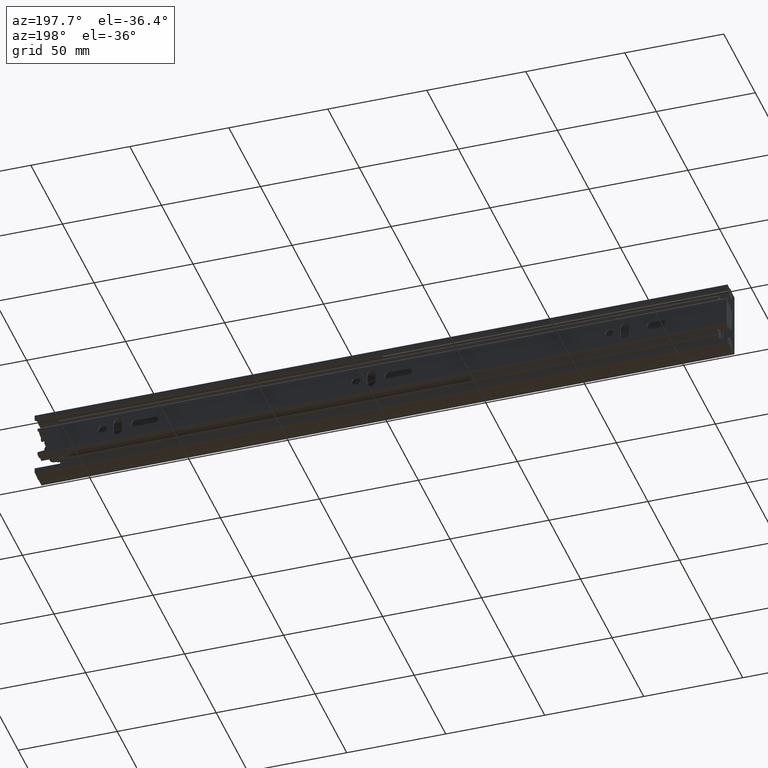
[diagram: clean part render]
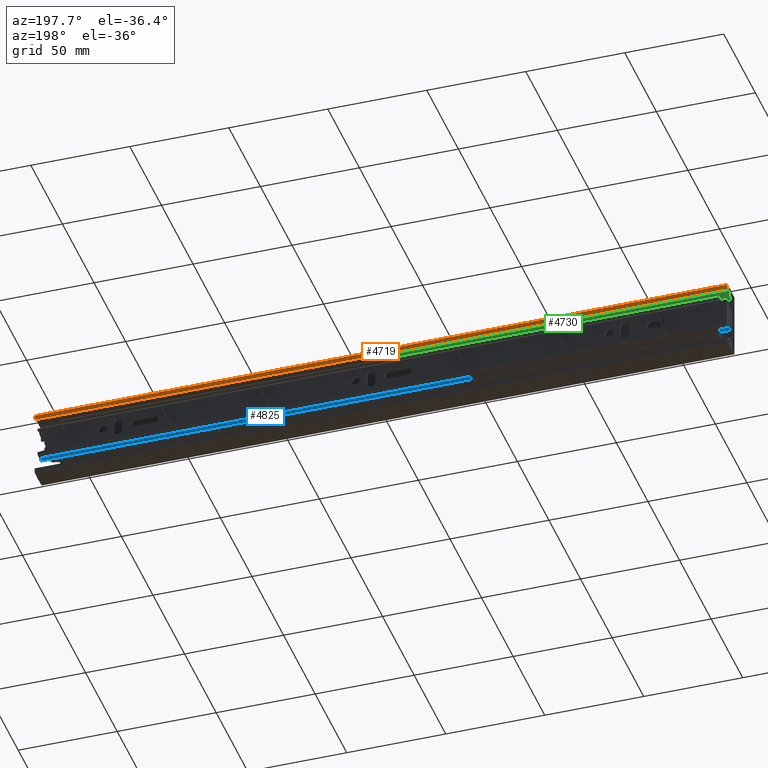
[diagram: same view with three faces highlighted in distinct colors, each labeled with its STEP entity id]
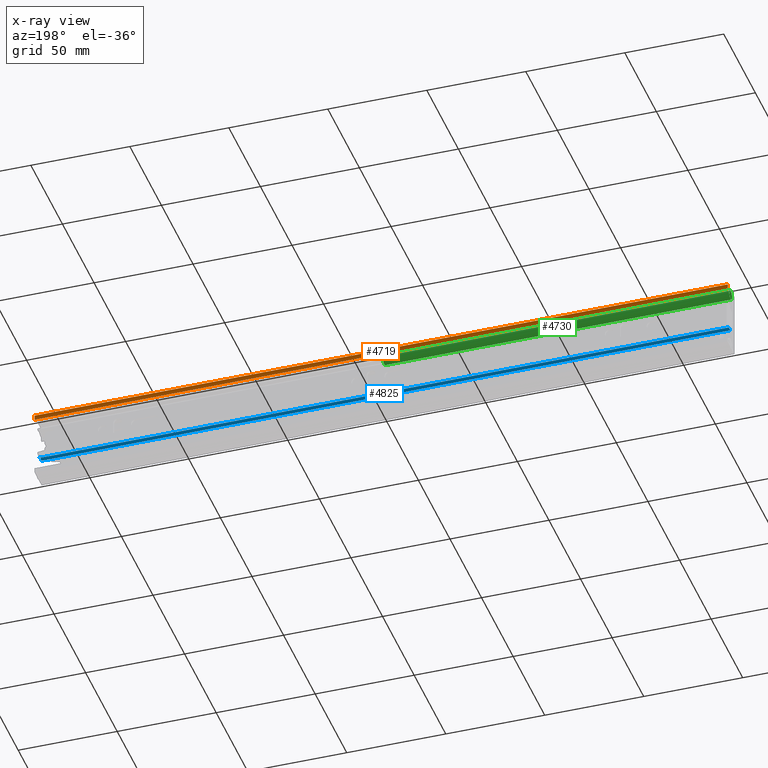
[diagram: x-ray of the same camera — body ghosted, the three highlighted faces saturated]
A machine part, auxiliary view with three faces highlighted in distinct colors.
The next image is the same camera in x-ray (body ghosted, the three faces saturated) — at least one of them is partly hidden behind the body in this view.
Their STEP definitions:

[orange] entity #4719 — the highlighted planar face has unit normal (0, 1, 0).
#318=FACE_OUTER_BOUND('',#597,.T.);
#597=EDGE_LOOP('',(#3710,#3711,#3712,#3713));
#896=LINE('',#7111,#1394);
#991=LINE('',#7316,#1489);
#998=LINE('',#7331,#1496);
#999=LINE('',#7333,#1497);
#1394=VECTOR('',#5640,2.5);
#1489=VECTOR('',#5911,2.5);
#1496=VECTOR('',#5926,350.);
#1497=VECTOR('',#5929,350.);
#2140=VERTEX_POINT('',#7108);
#2141=VERTEX_POINT('',#7110);
#2162=VERTEX_POINT('',#7313);
#2163=VERTEX_POINT('',#7315);
#2621=EDGE_CURVE('',#2140,#2141,#896,.T.);
#2722=EDGE_CURVE('',#2162,#2163,#991,.T.);
#2730=EDGE_CURVE('',#2162,#2141,#998,.T.);
#2731=EDGE_CURVE('',#2163,#2140,#999,.T.);
#3710=ORIENTED_EDGE('',*,*,#2730,.T.);
#3711=ORIENTED_EDGE('',*,*,#2621,.F.);
#3712=ORIENTED_EDGE('',*,*,#2731,.F.);
#3713=ORIENTED_EDGE('',*,*,#2722,.F.);
#4525=PLANE('',#5058);
#4719=ADVANCED_FACE('',(#318),#4525,.T.);
#5058=AXIS2_PLACEMENT_3D('',#7332,#5927,#5928);
#5640=DIRECTION('',(0.,-8.88178419700125E-16,1.));
#5911=DIRECTION('',(0.,8.88178419700125E-16,-1.));
#5926=DIRECTION('',(1.,0.,0.));
#5927=DIRECTION('center_axis',(0.,1.,8.88178419700125E-16));
#5928=DIRECTION('ref_axis',(0.,-8.88178419700125E-16,1.));
#5929=DIRECTION('',(1.,0.,0.));
#7108=CARTESIAN_POINT('',(175.,11.,14.5));
#7110=CARTESIAN_POINT('',(175.,11.,17.));
#7111=CARTESIAN_POINT('',(175.,11.,14.5));
#7313=CARTESIAN_POINT('',(-175.,11.,17.));
#7315=CARTESIAN_POINT('',(-175.,11.,14.5));
#7316=CARTESIAN_POINT('',(-175.,11.,14.5));
#7331=CARTESIAN_POINT('',(0.,11.,17.));
#7332=CARTESIAN_POINT('Origin',(0.,11.,14.5));
#7333=CARTESIAN_POINT('',(0.,11.,14.5));

[blue] entity #4825 — the highlighted cylindrical surface (edge-blend (fillet) strip) has radius 2.25 mm, axis along (1, 0, 0).
#139=CYLINDRICAL_SURFACE('',#5257,2.25);
#424=FACE_OUTER_BOUND('',#734,.T.);
#734=EDGE_LOOP('',(#4294,#4295,#4296,#4297));
#1124=LINE('',#7710,#1622);
#1197=LINE('',#7924,#1695);
#1622=VECTOR('',#6306,348.);
#1695=VECTOR('',#6525,348.);
#1890=CIRCLE('',#5159,2.25);
#1922=CIRCLE('',#5205,2.25);
#2261=VERTEX_POINT('',#7625);
#2262=VERTEX_POINT('',#7627);
#2293=VERTEX_POINT('',#7708);
#2328=VERTEX_POINT('',#7789);
#2871=EDGE_CURVE('',#2261,#2262,#1890,.T.);
#2913=EDGE_CURVE('',#2293,#2261,#1124,.T.);
#2954=EDGE_CURVE('',#2328,#2293,#1922,.T.);
#3019=EDGE_CURVE('',#2262,#2328,#1197,.T.);
#4294=ORIENTED_EDGE('',*,*,#2913,.F.);
#4295=ORIENTED_EDGE('',*,*,#2954,.F.);
#4296=ORIENTED_EDGE('',*,*,#3019,.F.);
#4297=ORIENTED_EDGE('',*,*,#2871,.F.);
#4825=ADVANCED_FACE('',(#424),#139,.F.);
#5159=AXIS2_PLACEMENT_3D('',#7628,#6229,#6230);
#5205=AXIS2_PLACEMENT_3D('',#7791,#6372,#6373);
#5257=AXIS2_PLACEMENT_3D('',#7923,#6523,#6524);
#6229=DIRECTION('center_axis',(1.,0.,0.));
#6230=DIRECTION('ref_axis',(0.,-0.831479419283122,-0.55555555555552));
#6306=DIRECTION('',(-1.,0.,0.));
#6372=DIRECTION('center_axis',(-1.,0.,0.));
#6373=DIRECTION('ref_axis',(0.,-0.831479419283122,-0.55555555555552));
#6523=DIRECTION('center_axis',(1.,0.,0.));
#6524=DIRECTION('ref_axis',(0.,-0.831479419283122,-0.55555555555552));
#6525=DIRECTION('',(1.,0.,0.));
#7625=CARTESIAN_POINT('',(-174.,9.72360545532353,-7.84230769230773));
#7627=CARTESIAN_POINT('',(-174.,6.8,-7.5635632327793));
#7628=CARTESIAN_POINT('Origin',(-174.,8.09999999999999,-9.4));
#7708=CARTESIAN_POINT('',(174.,9.72360545532353,-7.84230769230773));
#7710=CARTESIAN_POINT('',(0.,9.72360545532353,-7.84230769230773));
#7789=CARTESIAN_POINT('',(174.,6.8,-7.5635632327793));
#7791=CARTESIAN_POINT('Origin',(174.,8.09999999999999,-9.4));
#7923=CARTESIAN_POINT('Origin',(0.,8.09999999999999,-9.4));
#7924=CARTESIAN_POINT('',(0.,6.8,-7.5635632327793));

[green] entity #4730 — the highlighted cylindrical surface (bore or boss wall) has radius 2.25 mm, axis along (1, 0, 0).
#98=CYLINDRICAL_SURFACE('',#5073,2.25);
#182=FACE_BOUND('',#610,.T.);
#329=FACE_OUTER_BOUND('',#609,.T.);
#609=EDGE_LOOP('',(#3751));
#610=EDGE_LOOP('',(#3752));
#1852=CIRCLE('',#5072,2.25);
#1853=CIRCLE('',#5074,2.25);
#2170=VERTEX_POINT('',#7353);
#2171=VERTEX_POINT('',#7356);
#2738=EDGE_CURVE('',#2170,#2170,#1852,.T.);
#2739=EDGE_CURVE('',#2171,#2171,#1853,.T.);
#3751=ORIENTED_EDGE('',*,*,#2738,.F.);
#3752=ORIENTED_EDGE('',*,*,#2739,.F.);
#4730=ADVANCED_FACE('',(#329,#182),#98,.T.);
#5072=AXIS2_PLACEMENT_3D('',#7354,#5960,#5961);
#5073=AXIS2_PLACEMENT_3D('',#7355,#5962,#5963);
#5074=AXIS2_PLACEMENT_3D('',#7357,#5964,#5965);
#5960=DIRECTION('center_axis',(-1.,0.,0.));
#5961=DIRECTION('ref_axis',(0.,-1.,0.));
#5962=DIRECTION('center_axis',(1.,0.,0.));
#5963=DIRECTION('ref_axis',(0.,-1.,0.));
#5964=DIRECTION('center_axis',(1.,0.,0.));
#5965=DIRECTION('ref_axis',(0.,-1.,0.));
#7353=CARTESIAN_POINT('',(-87.5,8.24999999999999,14.2));
#7354=CARTESIAN_POINT('Origin',(-87.5,5.99999999999999,14.2));
#7355=CARTESIAN_POINT('Origin',(0.,5.99999999999999,14.2));
#7356=CARTESIAN_POINT('',(87.5,8.24999999999999,14.2));
#7357=CARTESIAN_POINT('Origin',(87.5,5.99999999999999,14.2));